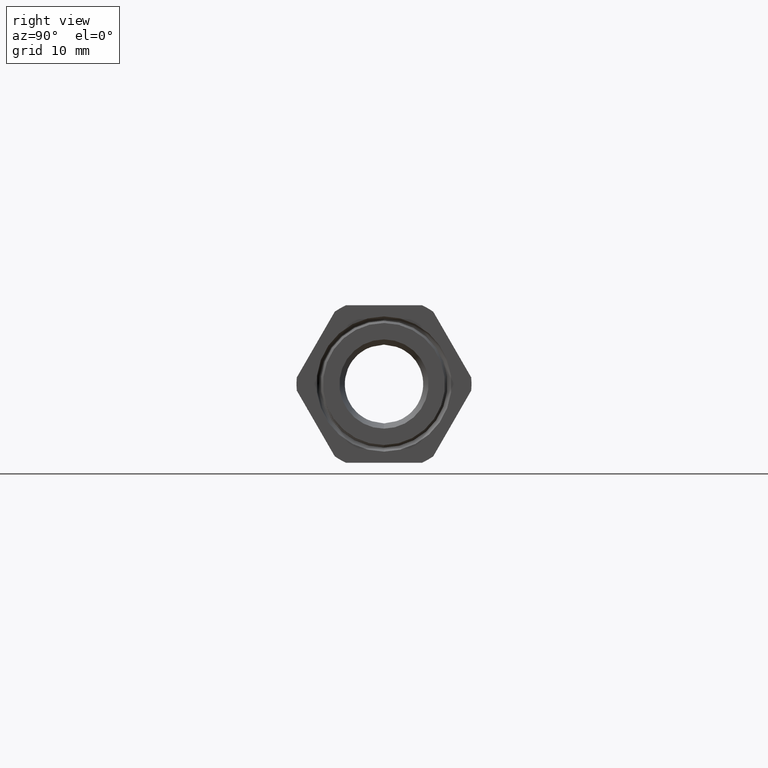
[diagram: clean part render]
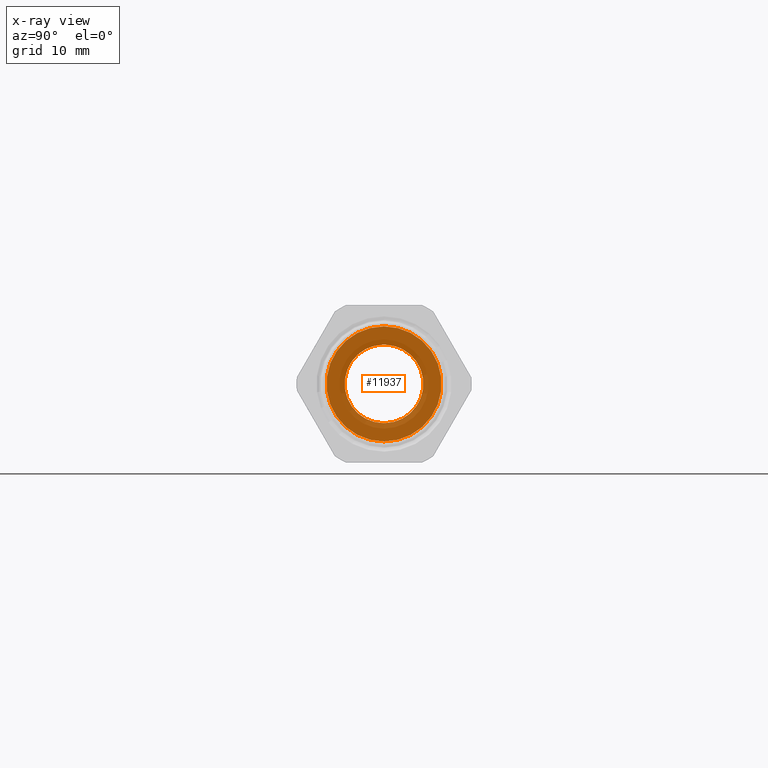
[diagram: x-ray — body ghosted, one internal face saturated and labeled with its STEP entity id]
A machine part, right view, then the same camera in x-ray: the body is ghosted and one INTERNAL B-rep face — a face not visible from any outside direction — is saturated and labeled: STEP entity #11937.
In plain terms, the highlighted planar face has unit normal (1, 0, 0).
Its self-contained STEP definition (entity closure, byte-faithful):
#428 = DIRECTION ( 'NONE',  ( 0.0000000000000000000, 0.0000000000000000000, -1.000000000000000000 ) ) ;
#431 = DIRECTION ( 'NONE',  ( 1.000000000000000000, 0.0000000000000000000, 0.0000000000000000000 ) ) ;
#432 = CARTESIAN_POINT ( 'NONE',  ( -1.263700787401574400, 0.0000000000000000000, 0.0000000000000000000 ) ) ;
#433 = AXIS2_PLACEMENT_3D ( 'NONE', #432, #431, #428 ) ;
#444 = CIRCLE ( 'NONE', #433, 0.2349999999999999600 ) ;
#1592 = CARTESIAN_POINT ( 'NONE',  ( -1.263700787401574400, 4.201763167874567800E-017, 0.3430999999999999600 ) ) ;
#1598 = DIRECTION ( 'NONE',  ( 0.0000000000000000000, 0.0000000000000000000, -1.000000000000000000 ) ) ;
#1599 = DIRECTION ( 'NONE',  ( 1.000000000000000000, 0.0000000000000000000, 0.0000000000000000000 ) ) ;
#1600 = CARTESIAN_POINT ( 'NONE',  ( -1.263700787401574400, 0.3430999999999999600, 0.0000000000000000000 ) ) ;
#1601 = AXIS2_PLACEMENT_3D ( 'NONE', #1600, #1599, #1598 ) ;
#1602 = PLANE ( 'NONE',  #1601 ) ;
#1603 = FACE_BOUND ( 'NONE', #2010, .T. ) ;
#1604 = FACE_OUTER_BOUND ( 'NONE', #11940, .T. ) ;
#1632 = DIRECTION ( 'NONE',  ( 0.0000000000000000000, 0.0000000000000000000, -1.000000000000000000 ) ) ;
#1633 = DIRECTION ( 'NONE',  ( 1.000000000000000000, 0.0000000000000000000, 0.0000000000000000000 ) ) ;
#1634 = CARTESIAN_POINT ( 'NONE',  ( -1.263700787401574400, 0.0000000000000000000, 0.0000000000000000000 ) ) ;
#1635 = AXIS2_PLACEMENT_3D ( 'NONE', #1634, #1633, #1632 ) ;
#1640 = CIRCLE ( 'NONE', #1635, 0.2349999999999999600 ) ;
#1643 = CARTESIAN_POINT ( 'NONE',  ( -1.263700787401574400, 2.877919977996279200E-017, 0.2349999999999999600 ) ) ;
#1650 = CARTESIAN_POINT ( 'NONE',  ( -1.263700787401574400, 0.0000000000000000000, -0.2349999999999999600 ) ) ;
#1770 = CARTESIAN_POINT ( 'NONE',  ( -1.263700787401574400, 0.0000000000000000000, -0.3430999999999999600 ) ) ;
#1771 = DIRECTION ( 'NONE',  ( 0.0000000000000000000, 0.0000000000000000000, -1.000000000000000000 ) ) ;
#1772 = DIRECTION ( 'NONE',  ( 1.000000000000000000, 0.0000000000000000000, 0.0000000000000000000 ) ) ;
#1773 = CARTESIAN_POINT ( 'NONE',  ( -1.263700787401574400, 0.0000000000000000000, 0.0000000000000000000 ) ) ;
#1774 = AXIS2_PLACEMENT_3D ( 'NONE', #1773, #1772, #1771 ) ;
#1775 = CIRCLE ( 'NONE', #1774, 0.3430999999999999600 ) ;
#2010 = EDGE_LOOP ( 'NONE', ( #13296, #13074 ) ) ;
#2030 = EDGE_CURVE ( 'NONE', #11954, #12088, #14309, .T. ) ;
#11937 = ADVANCED_FACE ( 'NONE', ( #1604, #1603 ), #1602, .T. ) ;
#11940 = EDGE_LOOP ( 'NONE', ( #13659, #13662 ) ) ;
#11954 = VERTEX_POINT ( 'NONE', #1592 ) ;
#11962 = VERTEX_POINT ( 'NONE', #1650 ) ;
#11974 = VERTEX_POINT ( 'NONE', #1643 ) ;
#11980 = EDGE_CURVE ( 'NONE', #11974, #11962, #1640, .T. ) ;
#12087 = EDGE_CURVE ( 'NONE', #12088, #11954, #1775, .T. ) ;
#12088 = VERTEX_POINT ( 'NONE', #1770 ) ;
#13074 = ORIENTED_EDGE ( 'NONE', *, *, #11980, .F. ) ;
#13296 = ORIENTED_EDGE ( 'NONE', *, *, #13300, .F. ) ;
#13300 = EDGE_CURVE ( 'NONE', #11962, #11974, #444, .T. ) ;
#13659 = ORIENTED_EDGE ( 'NONE', *, *, #12087, .T. ) ;
#13662 = ORIENTED_EDGE ( 'NONE', *, *, #2030, .T. ) ;
#14305 = DIRECTION ( 'NONE',  ( 0.0000000000000000000, 0.0000000000000000000, -1.000000000000000000 ) ) ;
#14306 = DIRECTION ( 'NONE',  ( 1.000000000000000000, 0.0000000000000000000, 0.0000000000000000000 ) ) ;
#14307 = CARTESIAN_POINT ( 'NONE',  ( -1.263700787401574400, 0.0000000000000000000, 0.0000000000000000000 ) ) ;
#14308 = AXIS2_PLACEMENT_3D ( 'NONE', #14307, #14306, #14305 ) ;
#14309 = CIRCLE ( 'NONE', #14308, 0.3430999999999999600 ) ;